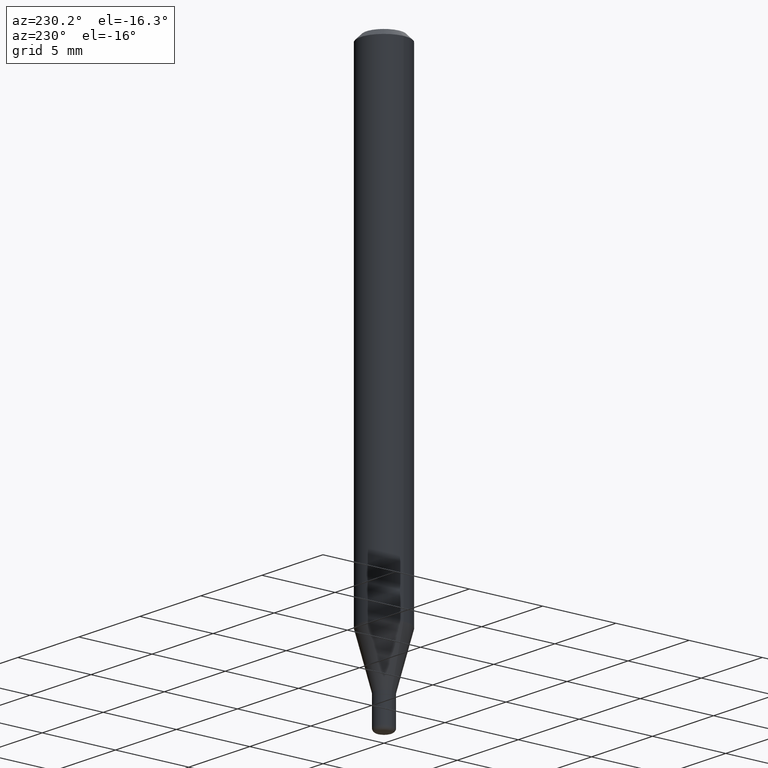
[diagram: clean part render]
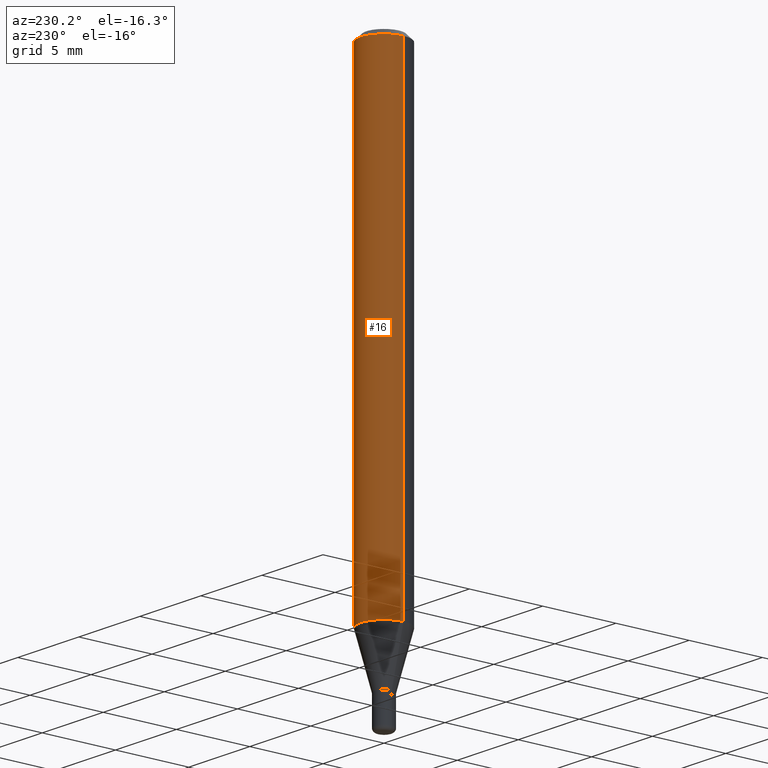
[diagram: same view with one face highlighted and labeled with its STEP entity id]
A machine part, auxiliary view. The second image highlights one B-rep face of the part: STEP entity #16.
In plain terms, the highlighted cylindrical surface (edge-blend (fillet) strip) has radius 1.5875 mm, axis along (-0, 0, 1).
Its self-contained STEP definition (entity closure, byte-faithful):
#1 = EDGE_CURVE ( 'NONE', #122, #200, #353, .T. ) ;
#10 = EDGE_CURVE ( 'NONE', #122, #473, #302, .T. ) ;
#16 = ADVANCED_FACE ( 'NONE', ( #383 ), #30, .T. ) ;
#30 = CYLINDRICAL_SURFACE ( 'NONE', #310, 0.06250000000000000000 ) ;
#34 = DIRECTION ( 'NONE',  ( -2.445468806185136877E-29, 3.491481338843145188E-15, 1.000000000000000000 ) ) ;
#48 = ORIENTED_EDGE ( 'NONE', *, *, #421, .F. ) ;
#66 = EDGE_CURVE ( 'NONE', #200, #137, #472, .T. ) ;
#112 = DIRECTION ( 'NONE',  ( -2.445468806185136877E-29, 3.491481338843145188E-15, 1.000000000000000000 ) ) ;
#113 = ORIENTED_EDGE ( 'NONE', *, *, #1, .T. ) ;
#120 = ORIENTED_EDGE ( 'NONE', *, *, #66, .T. ) ;
#122 = VERTEX_POINT ( 'NONE', #407 ) ;
#137 = VERTEX_POINT ( 'NONE', #506 ) ;
#153 = CARTESIAN_POINT ( 'NONE',  ( -0.06250000000000000000, 4.440892098500626162E-16, -3.074334431409316114E-30 ) ) ;
#179 = AXIS2_PLACEMENT_3D ( 'NONE', #457, #461, #502 ) ;
#188 = CARTESIAN_POINT ( 'NONE',  ( 0.000000000000000000, 0.000000000000000000, 0.000000000000000000 ) ) ;
#200 = VERTEX_POINT ( 'NONE', #454 ) ;
#209 = CARTESIAN_POINT ( 'NONE',  ( 0.06250000000000000000, -4.888073874380378612E-16, -0.01499999999999970281 ) ) ;
#236 = CARTESIAN_POINT ( 'NONE',  ( 0.06250000000000000000, -4.364351673553916694E-16, 3.047610484872459871E-30 ) ) ;
#245 = EDGE_LOOP ( 'NONE', ( #113, #120, #48, #491 ) ) ;
#263 = DIRECTION ( 'NONE',  ( -2.445468806185136597E-29, 3.491481338843145583E-15, 1.000000000000000000 ) ) ;
#273 = CARTESIAN_POINT ( 'NONE',  ( 3.118090342014177952E-29, -4.451806628829005278E-15, -1.275048094716166869 ) ) ;
#279 = VECTOR ( 'NONE', #112, 39.37007874015748143 ) ;
#302 = LINE ( 'NONE', #236, #493 ) ;
#310 = AXIS2_PLACEMENT_3D ( 'NONE', #188, #263, #424 ) ;
#353 = CIRCLE ( 'NONE', #375, 0.06250000000000000000 ) ;
#354 = CIRCLE ( 'NONE', #179, 0.06250000000000000000 ) ;
#375 = AXIS2_PLACEMENT_3D ( 'NONE', #273, #425, #512 ) ;
#383 = FACE_OUTER_BOUND ( 'NONE', #245, .T. ) ;
#407 = CARTESIAN_POINT ( 'NONE',  ( 0.06250000000000000000, -4.888241796184395369E-15, -1.275048094716166869 ) ) ;
#421 = EDGE_CURVE ( 'NONE', #473, #137, #354, .T. ) ;
#424 = DIRECTION ( 'NONE',  ( 1.000000000000000000, -6.982962677686266711E-15, 4.876176775795935793E-29 ) ) ;
#425 = DIRECTION ( 'NONE',  ( -2.445468806185136597E-29, 3.491481338843145583E-15, 1.000000000000000000 ) ) ;
#454 = CARTESIAN_POINT ( 'NONE',  ( -0.06250000000000000000, -4.007717418978941084E-15, -1.275048094716166869 ) ) ;
#457 = CARTESIAN_POINT ( 'NONE',  ( 3.668203209277632395E-31, -5.237222008264614861E-17, -0.01499999999999970281 ) ) ;
#461 = DIRECTION ( 'NONE',  ( -2.445468806185136597E-29, 3.491481338843145583E-15, 1.000000000000000000 ) ) ;
#472 = LINE ( 'NONE', #153, #279 ) ;
#473 = VERTEX_POINT ( 'NONE', #209 ) ;
#491 = ORIENTED_EDGE ( 'NONE', *, *, #10, .F. ) ;
#493 = VECTOR ( 'NONE', #34, 39.37007874015748143 ) ;
#502 = DIRECTION ( 'NONE',  ( 1.000000000000000000, -6.982962677686266711E-15, 0.000000000000000000 ) ) ;
#506 = CARTESIAN_POINT ( 'NONE',  ( -0.06250000000000000000, -1.808000214605762576E-15, -0.01499999999999970281 ) ) ;
#512 = DIRECTION ( 'NONE',  ( 1.000000000000000000, -6.982962677686262766E-15, 0.000000000000000000 ) ) ;